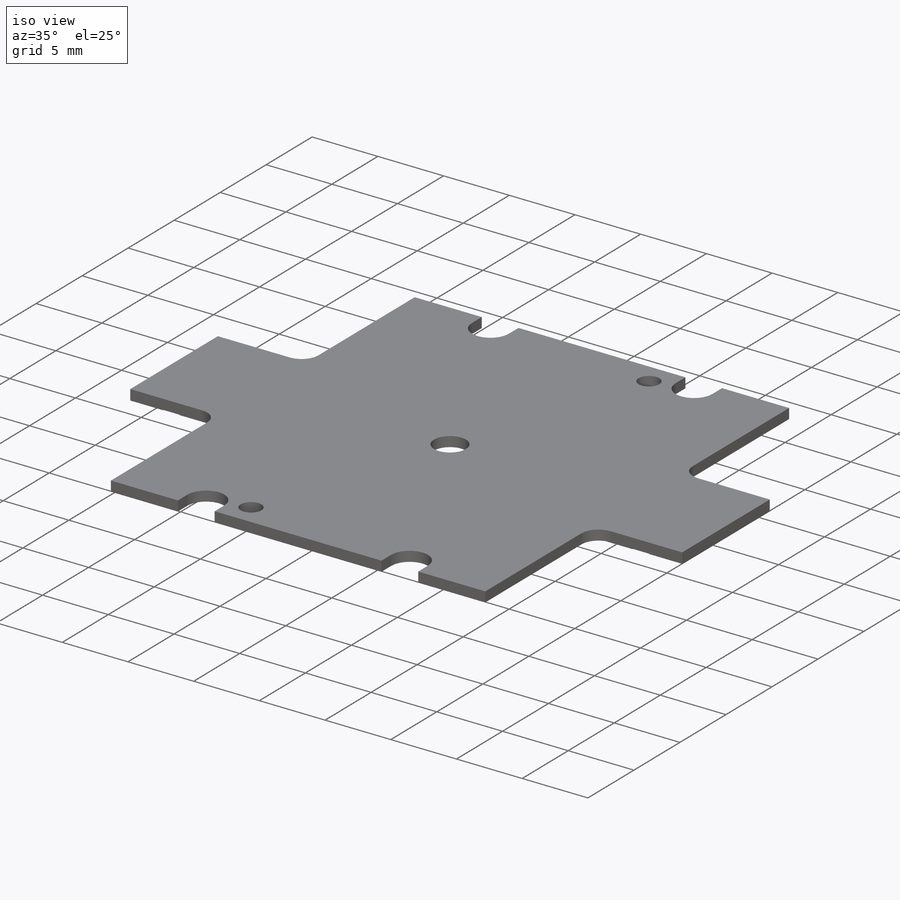
[diagram: iso view]
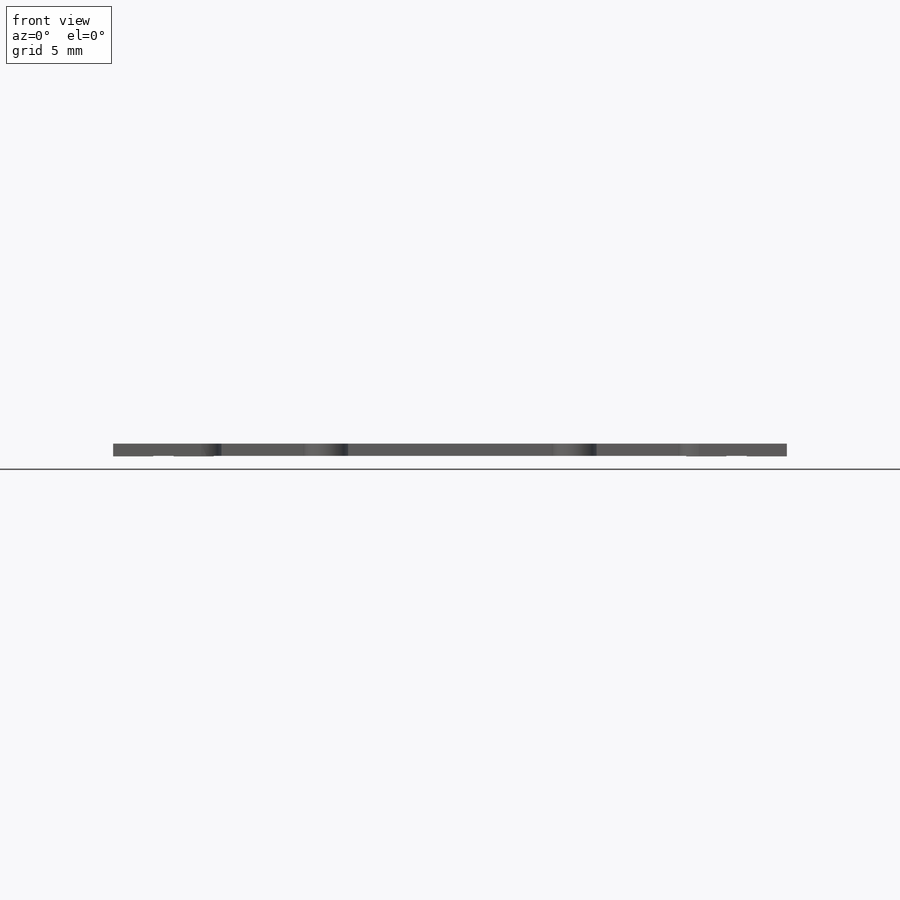
[diagram: front view]
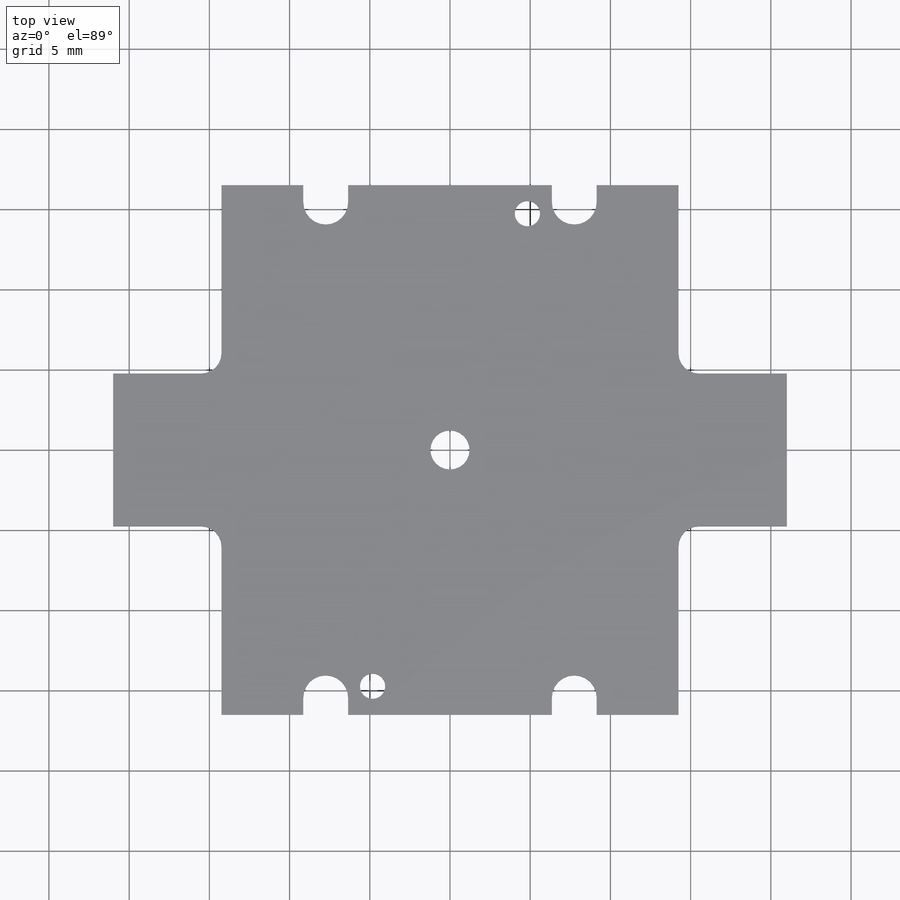
[diagram: top view]
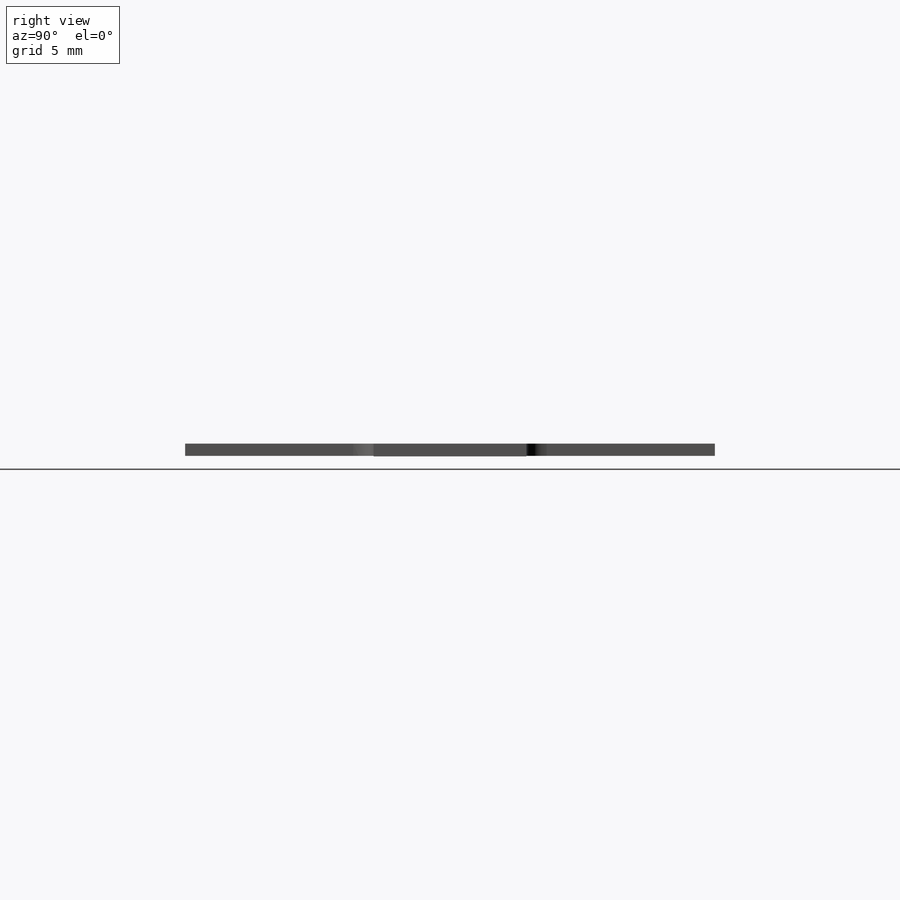
[diagram: right view]
SOLIDWORKS PART (.sldprt)
format: sldprt  version: not decoded by parser v0  size: 301,568 bytes
history: native  units: mm
features: sketch x6, cut_extrude x4, mirror x3, extrude x2, material x1, fillet x1, pattern_circular x1 (+12 scaffold rows collapsed)
feature tree (30):
  scaffold x12  (default folders/planes/origin — collapsed)
  material  "Material <not specified>"
  sketch  "Sketch1"  dims[D1=42.0mm D2=33.02mm]
  extrude  "Boss-Extrude1"  Depth=0.762mm
  sketch  "Sketch3"  dims[D1=2.4384mm]
  cut_extrude  "Cut-Extrude2"  Depth=1.5875mm
  sketch  "Sketch2"  dims[c1.D2=1.397mm c1.D1=~9.01954mm c1.D3=~15.45082mm c2.D1=12.7mm]
  cut_extrude  "Cut-Extrude1"  [1 undecoded]
  sketch  "Sketch5"  dims[D1=~14.24559mm D2=9.525mm]
  cut_extrude  "Cut-Extrude3"  [1 undecoded]
  fillet  "Fillet1"  Radius=1.27mm
  sketch  "Sketch7"  dims[D1=1.5748mm D2=14.732mm D3=4.826mm]
  cut_extrude  "Cut-Extrude4"  [1 undecoded]
  mirror  "Mirror1"
  mirror  "Mirror2"
  sketch  "Sketch6"  dims[c1.D1=~3.999992mm c1.D2=1.27mm c1.D3=1.905mm c2.D1=2.5mm]
  extrude  "Boss-Extrude2"  Depth=0.0254mm
  mirror  "Mirror3"
  pattern_circular  "CirPattern1"  Count=2 Angle=360deg
decode coverage: 11 of 17 modeling features carry decoded parameters
note: ~ marks probable driven/reference dimensions
note: 3 parameter values undecoded
summary: no parameter record found for 3 features
note: suppression state not decoded; provenance and decode notes live in map.json
